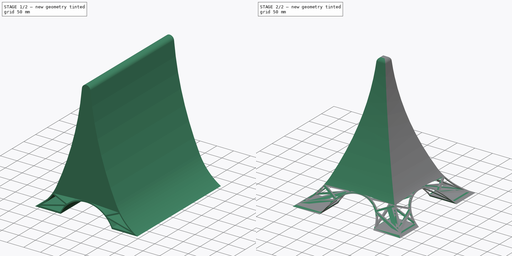
[diagram: build sequence overview — one tinted view per stage of 2, left to right]
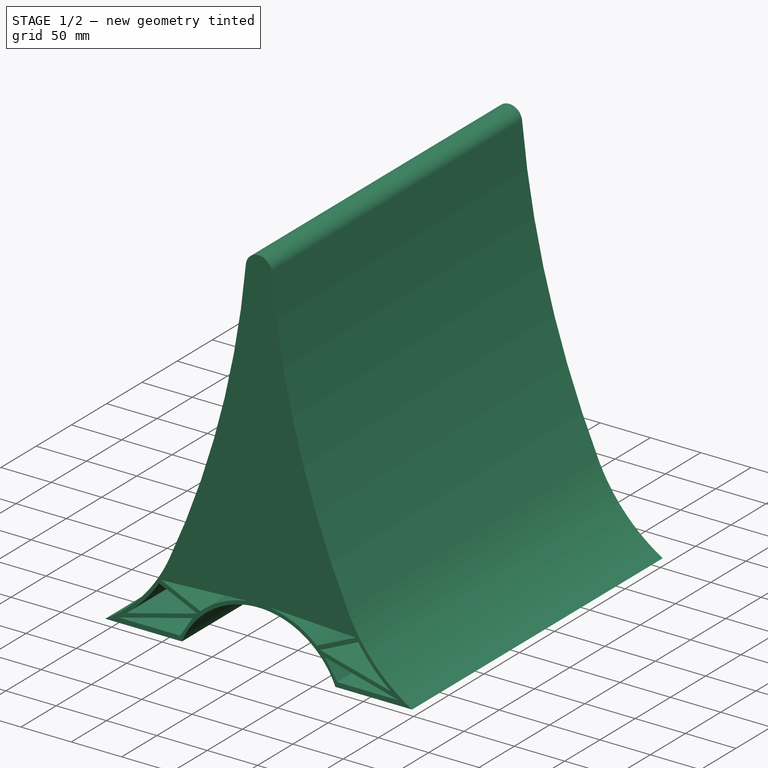
[diagram: stage 1 of 2 — iso view after this stage's code; geometry added in this stage tinted green]
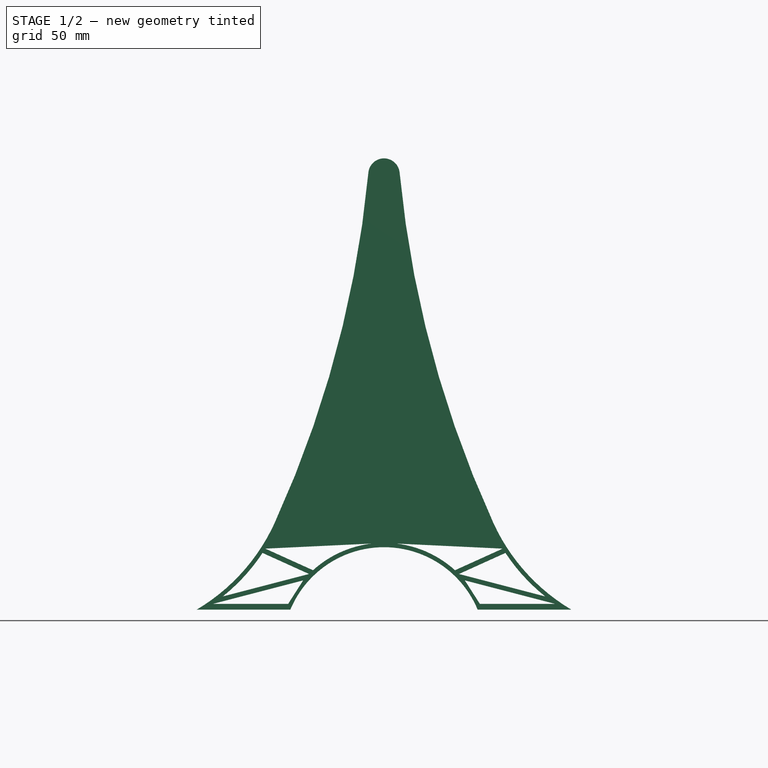
[diagram: stage 1 of 2 — front view after this stage's code; geometry added in this stage tinted green]
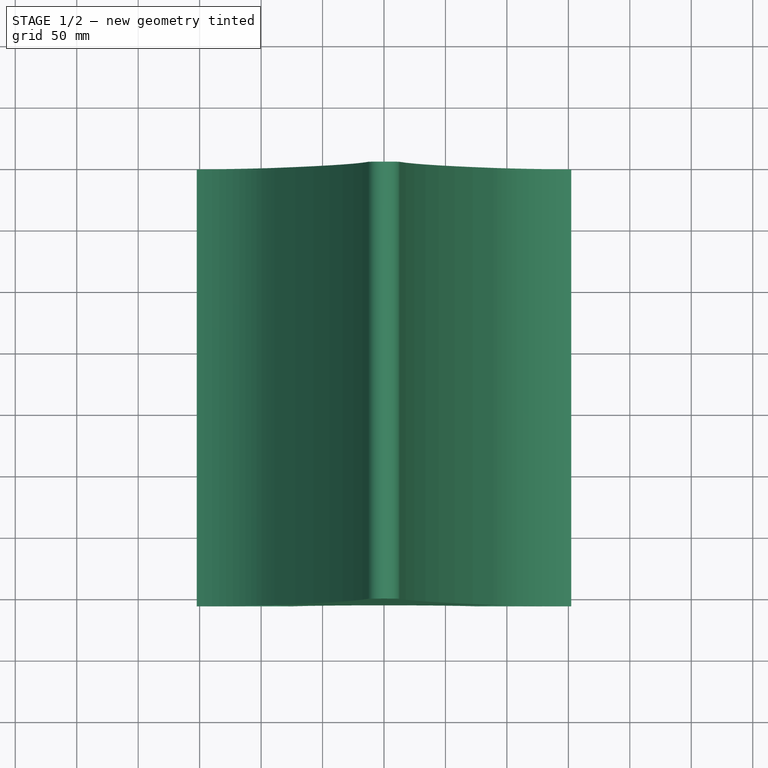
[diagram: stage 1 of 2 — top view after this stage's code; geometry added in this stage tinted green]
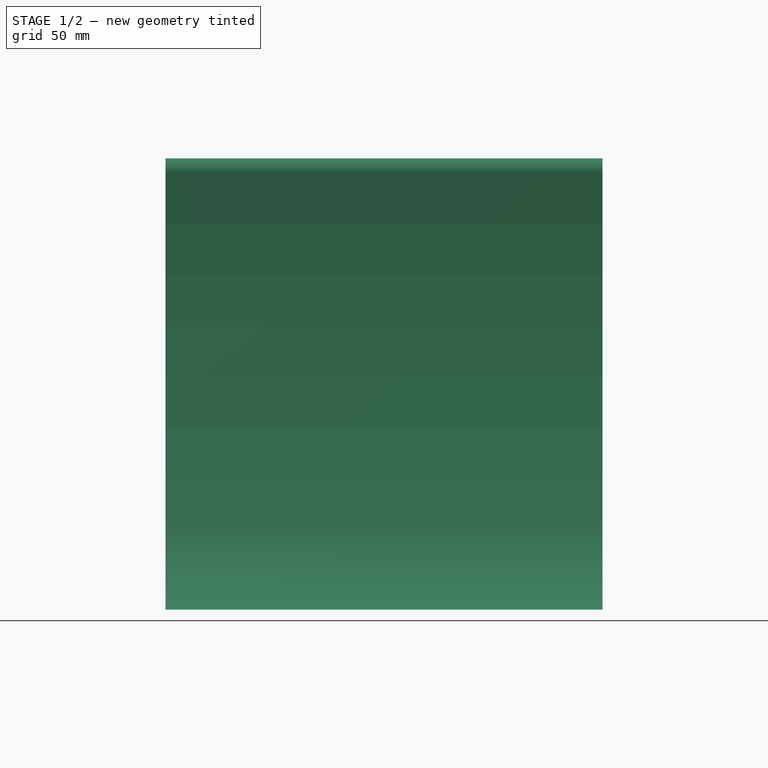
[diagram: stage 1 of 2 — right view after this stage's code; geometry added in this stage tinted green]
FCSTD DOCUMENT  (FreeCAD 0.19R24267 (Git))
Label: tower
License: All rights reserved
LicenseURL: http://en.wikipedia.org/wiki/All_rights_reserved
objects: Sketcher::SketchObject×1, PartDesign::Pad×1, PartDesign::Body×1, App::Part×1, Part::Feature×1, Part::MultiCommon×1
note: 6 computed .brp shape members not serialized (recipe doc carries the construction recipe); baked Part::Feature solids carry a one-line shape summary decoded from their .brp

FEATURE [Sketcher::SketchObject] Sketch
  FullyConstrained = false
  MapMode = 5
  Placement = pos=(0,0,0) rot=(1,0,0;1.5708rad)
  Support = -> [XZ_Plane001]
  sketch-geometry (29):
    g0: ArcOfCircle CenterX=-233.332 CenterY=136.571 CenterZ=0 NormalX=0 NormalY=0 NormalZ=1 AngleXU=0 Radius=158.75 StartAngle=5.24735 EndAngle=5.85521
    g1: ArcOfCircle CenterX=-897.718 CenterY=439.648 CenterZ=0 NormalX=0 NormalY=0 NormalZ=1 AngleXU=0 Radius=889 StartAngle=5.85521 EndAngle=6.1885
    g2: ArcOfCircle CenterX=0 CenterY=354.394 CenterZ=0 NormalX=0 NormalY=0 NormalZ=1 AngleXU=0 Radius=12.7571 StartAngle=0.0946841 EndAngle=3.04691
    g3: ArcOfCircle CenterX=897.718 CenterY=439.648 CenterZ=0 NormalX=0 NormalY=0 NormalZ=1 AngleXU=0 Radius=889 StartAngle=3.23628 EndAngle=3.56957
    g4: ArcOfCircle CenterX=233.332 CenterY=136.571 CenterZ=0 NormalX=0 NormalY=0 NormalZ=1 AngleXU=0 Radius=158.75 StartAngle=3.56957 EndAngle=4.17743
    g5: ArcOfCircle CenterX=0 CenterY=-31.75 CenterZ=0 NormalX=0 NormalY=0 NormalZ=1 AngleXU=0 Radius=82.55 StartAngle=0.394791 EndAngle=2.7468
    g6: LineSegment StartX=76.2 StartY=-3.6e-15 StartZ=0 EndX=152.4 EndY=2.84e-14 EndZ=0
    g7: LineSegment StartX=-76.2 StartY=0 StartZ=0 EndX=-152.4 EndY=-2.84e-14 EndZ=0
    g8: ArcOfCircle CenterX=0 CenterY=-31.75 CenterZ=0 NormalX=0 NormalY=0 NormalZ=1 AngleXU=0 Radius=86.0794 StartAngle=0.377767 EndAngle=2.76383
    g9: ArcOfCircle CenterX=-233.332 CenterY=136.571 CenterZ=0 NormalX=0 NormalY=0 NormalZ=1 AngleXU=0 Radius=162.079 StartAngle=5.28106 EndAngle=5.85521
    g10: ArcOfCircle CenterX=-897.718 CenterY=439.648 CenterZ=0 NormalX=0 NormalY=0 NormalZ=1 AngleXU=0 Radius=892.329 StartAngle=5.85521 EndAngle=6.18886
    g11: LineSegment StartX=-139.101 StartY=4.6985 StartZ=0 EndX=-77.9819 EndY=4.6985 EndZ=0
    g12: LineSegment StartX=-77.9819 StartY=4.6985 StartZ=0 EndX=-65.7674 EndY=23.7866 EndZ=0
    g13: LineSegment StartX=-65.7674 StartY=23.7866 StartZ=0 EndX=-139.101 EndY=4.6985 EndZ=0
    g14: LineSegment StartX=-131.196 StartY=10.7218 StartZ=0 EndX=-60.9883 EndY=28.9961 EndZ=0
    g15: LineSegment StartX=-60.9883 StartY=28.9961 StartZ=0 EndX=-98.8287 EndY=46.1351 EndZ=0
    g16: ArcOfCircle CenterX=-226.102 CenterY=129.963 CenterZ=0 NormalX=0 NormalY=0 NormalZ=1 AngleXU=0 Radius=152.4 StartAngle=5.38464 EndAngle=5.70076
    g17: LineSegment StartX=-96.5486 StartY=49.6222 StartZ=0 EndX=-57.7745 EndY=32.0604 EndZ=0
    g18: ArcOfCircle CenterX=-4.4e-15 CenterY=-31.75 CenterZ=0 NormalX=0 NormalY=0 NormalZ=1 AngleXU=0 Radius=86.0794 StartAngle=1.68723 EndAngle=2.30659
    g19: LineSegment StartX=-96.5486 StartY=49.6222 StartZ=0 EndX=-9.99957 EndY=53.7466 EndZ=0
    g20: LineSegment StartX=139.101 StartY=4.6985 StartZ=0 EndX=77.9819 EndY=4.6985 EndZ=0
    g21: LineSegment StartX=65.7674 StartY=23.7866 StartZ=0 EndX=139.101 EndY=4.6985 EndZ=0
    g22: LineSegment StartX=131.196 StartY=10.7218 StartZ=0 EndX=60.9883 EndY=28.9961 EndZ=0
    g23: ArcOfCircle CenterX=226.102 CenterY=129.963 CenterZ=0 NormalX=0 NormalY=0 NormalZ=1 AngleXU=0 Radius=152.4 StartAngle=3.72402 EndAngle=4.04014
    g24: LineSegment StartX=60.9883 StartY=28.9961 StartZ=0 EndX=98.8287 EndY=46.1351 EndZ=0
    g25: LineSegment StartX=96.5486 StartY=49.6222 StartZ=0 EndX=57.7745 EndY=32.0604 EndZ=0
    g26: LineSegment StartX=96.5486 StartY=49.6222 StartZ=0 EndX=9.99957 EndY=53.7466 EndZ=0
    g27: ArcOfCircle CenterX=4.4e-15 CenterY=-31.75 CenterZ=0 NormalX=0 NormalY=0 NormalZ=1 AngleXU=0 Radius=86.0794 StartAngle=0.835 EndAngle=1.45437
    g28: LineSegment StartX=77.9819 StartY=4.6985 StartZ=0 EndX=65.7674 EndY=23.7866 EndZ=0
  constraints (71):
    c: PointOnObject(g0,g-1)
    c: Radius(g0) = 158.75
    c: DistanceX(g0,g-1) = 152.4
    c: DistanceX(g-1,g0) = -88.9
    c: Tangent(g1,g0) = -1.5708
    c: Radius(g1) = 889
    c: DistanceY(g-1,g1) = 355.6
    c: PointOnObject(g2,g-2)
    c: DistanceX(g1,g-1) = 12.7
    c: Tangent(g2,g1) = 1.5708
    c: Horizontal(g1,g2)
    c: Radius(g4) = 158.75
    c: Tangent(g3,g4) = -1.5708
    c: Radius(g3) = 889
    c: Symmetric(g0,g4,g-1)
    c: Tangent(g2,g3) = 1.5708
    c: PointOnObject(g5,g-2)
    c: PointOnObject(g5,g-1)
    c: PointOnObject(g5,g-1)
    c: Radius(g5) = 82.55
    c: DistanceX(g5,g5) = 152.4
    c: Coincident(g6,g5)
    c: Coincident(g6,g4)
    c: Coincident(g7,g5)
    c: Coincident(g7,g0)
    c: PointOnObject(g8,g7)
    c: PointOnObject(g8,g6)
    c: DistanceX(g8,g5) = 3.81
    c: Coincident(g5,g8)
    c: Coincident(g9,g0)
    c: PointOnObject(g9,g7)
    c: DistanceX(g0,g9) = 6.35
    c: Coincident(g10,g1)
    c: Tangent(g10,g9) = -1.5708
    c: Horizontal(g1,g10)
    c: PointOnObject(g11,g9)
    c: PointOnObject(g11,g8)
    c: Horizontal(g11)
    c: Coincident(g11,g12)
    c: PointOnObject(g12,g8)
    c: Coincident(g12,g13)
    c: Coincident(g13,g11)
    c: PointOnObject(g14,g9)
    c: PointOnObject(g14,g8)
    c: Coincident(g14,g15)
    c: PointOnObject(g15,g9)
    c: Coincident(g16,g14)
    c: Coincident(g16,g15)
    c: Radius(g16) = 152.4
    c: PointOnObject(g17,g9)
    c: PointOnObject(g17,g8)
    c: Parallel(g14,g13)
    c: Parallel(g17,g15)
    c: Coincident(g18,g17)
    c: PointOnObject(g18,g8)
    c: Equal(g18,g8)
    c: Coincident(g19,g17)
    c: Coincident(g19,g18)
    c: Horizontal(g20)
    c: Coincident(g20,g28)
    c: Coincident(g28,g21)
    c: Coincident(g21,g20)
    c: Coincident(g22,g24)
    c: Coincident(g23,g22)
    c: Coincident(g23,g24)
    c: Radius(g23) = 152.4
    c: Parallel(g22,g21)
    c: Parallel(g25,g24)
    c: Coincident(g27,g25)
    c: Coincident(g26,g25)
    c: Coincident(g26,g27)
FEATURE [PartDesign::Pad] Pad
  Direction = (1,1,1)
  Length = 355.6
  Length2 = 100.076
  Placement = pos=(0,0,0) rot=(1,0,0;1.5708rad)
  Profile = -> Sketch
  Type = 0
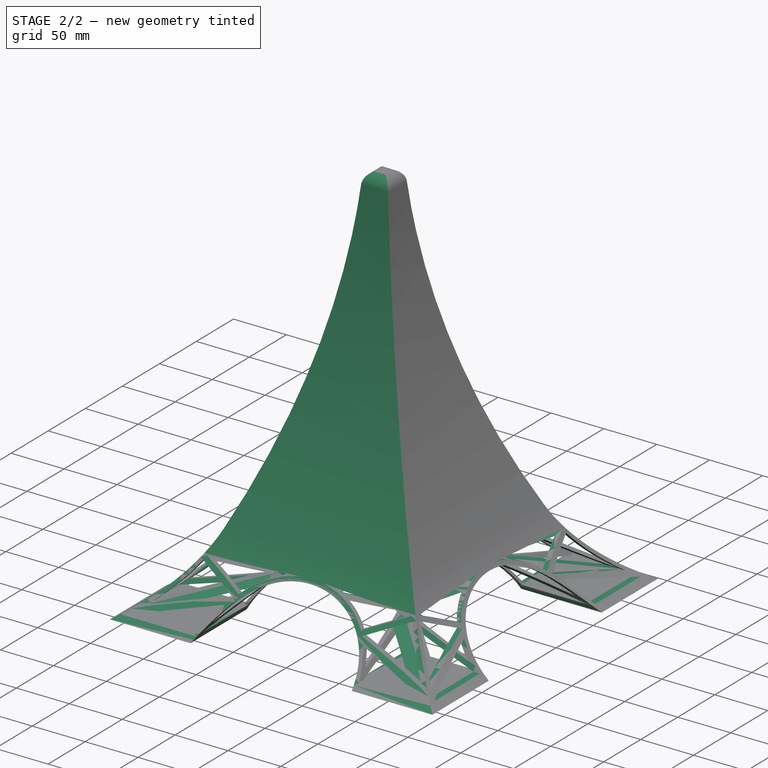
[diagram: stage 2 of 2 — iso view after this stage's code; geometry added in this stage tinted green]
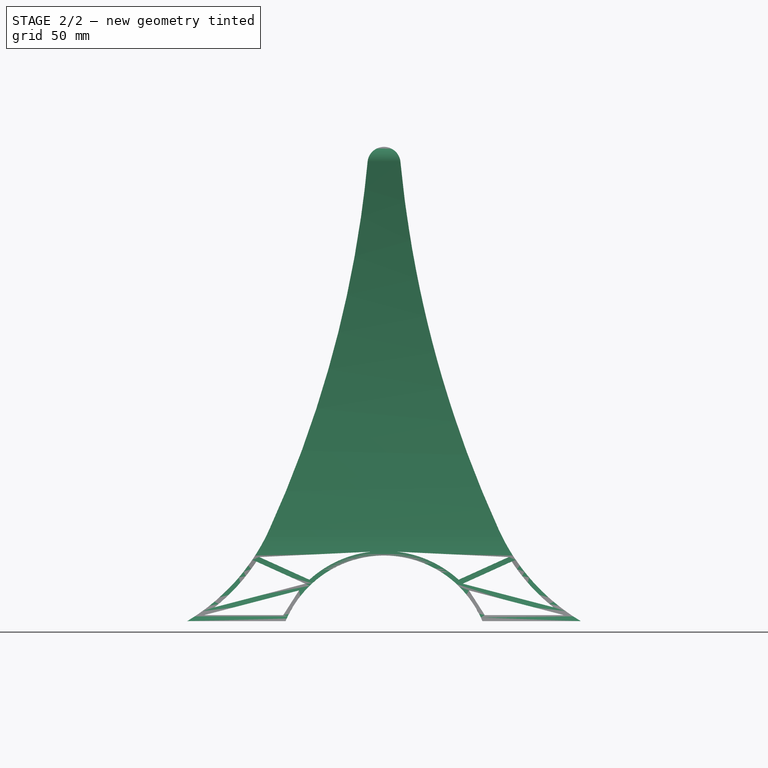
[diagram: stage 2 of 2 — front view after this stage's code; geometry added in this stage tinted green]
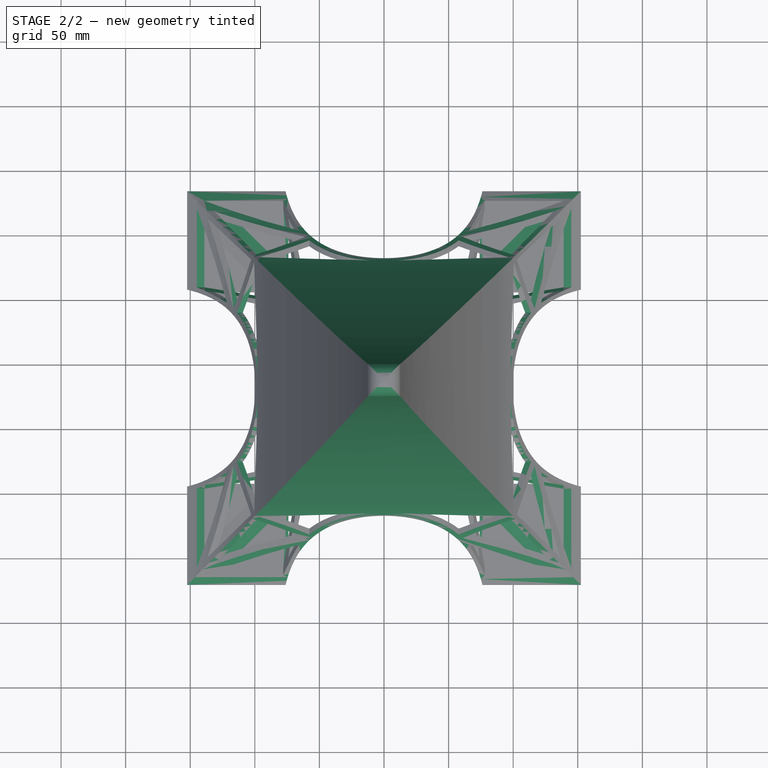
[diagram: stage 2 of 2 — top view after this stage's code; geometry added in this stage tinted green]
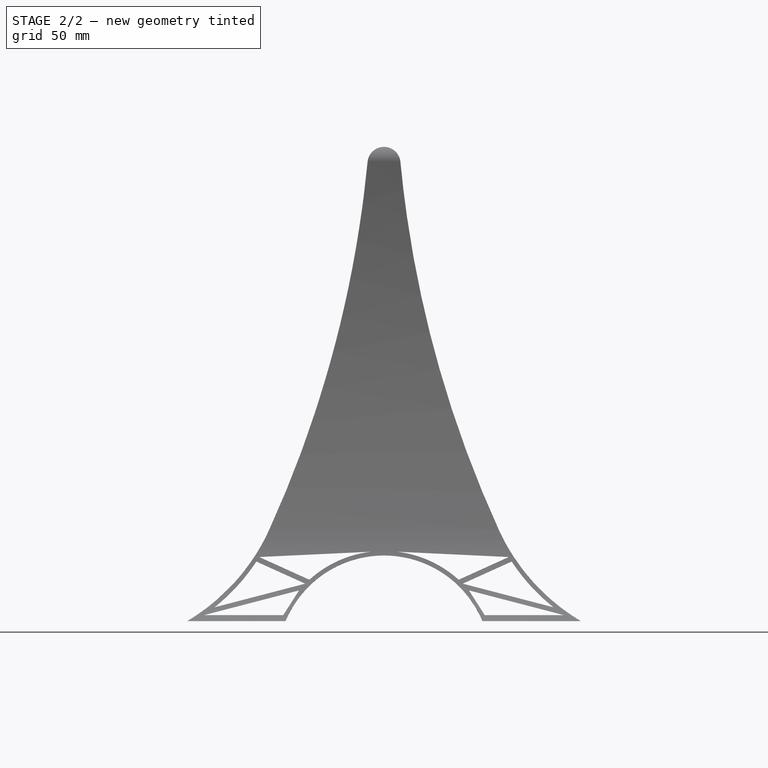
[diagram: stage 2 of 2 — right view after this stage's code; geometry added in this stage tinted green]
FEATURE [PartDesign::Body] Body
  Group = -> [Sketch,Pad]
  Origin = -> Origin001
  Tip = -> Pad
FEATURE [App::Part] Part
  Group = -> [Body]
  Origin = -> Origin
FEATURE [Part::Feature] Pad001
  Placement = pos=(169,-168,0.000254) rot=(-0.57735,0.57735,0.57735;4.18879rad)
  shape: bbox 355.6 x 304.8 x 367.2 mm, 28 faces (baked)
FEATURE [Part::MultiCommon] Common
  Shapes = -> [Pad,Pad001]
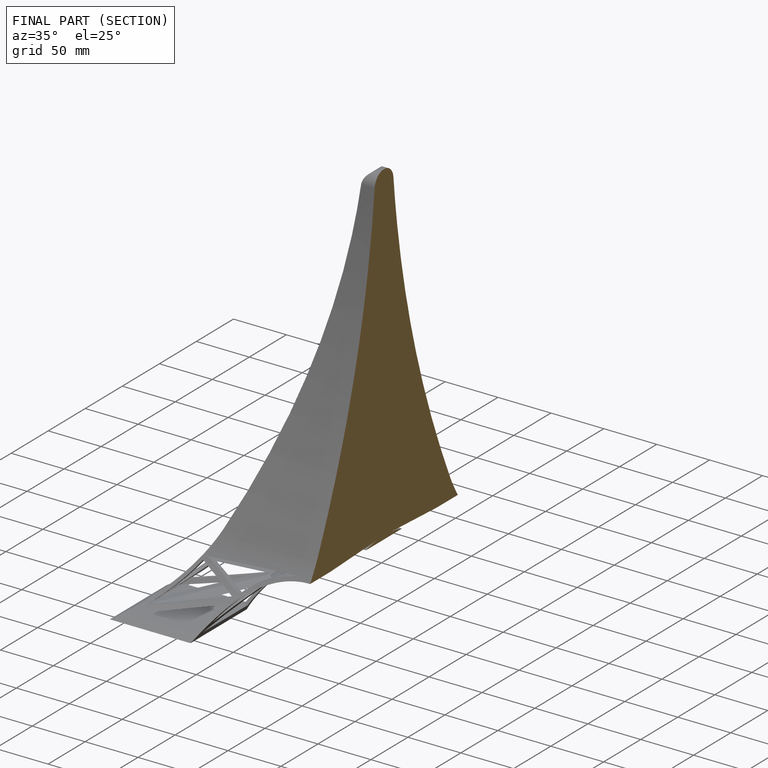
[diagram: finished part — half-section view (interior)]
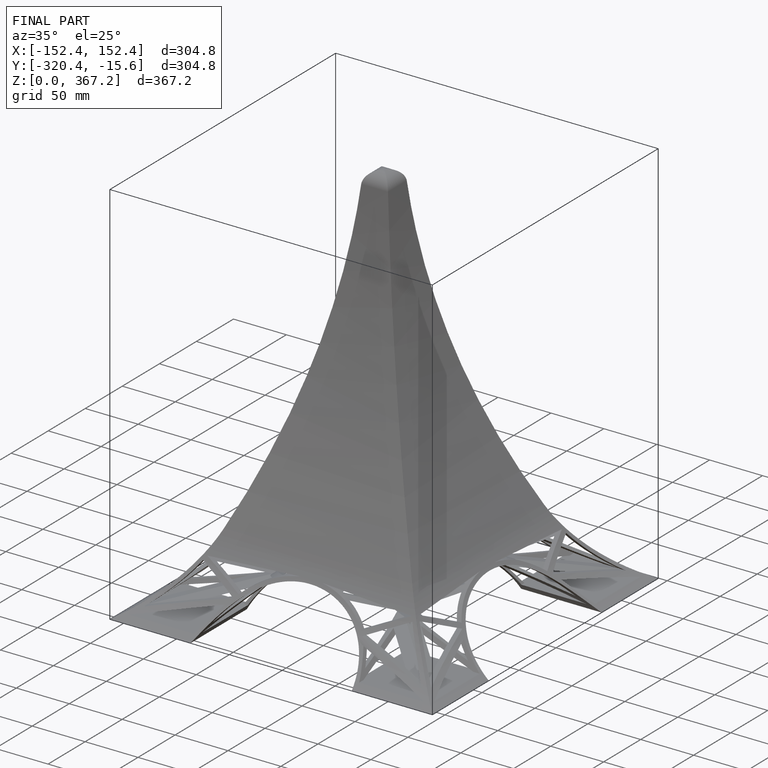
[diagram: finished part — iso view with bounding-box wireframe]
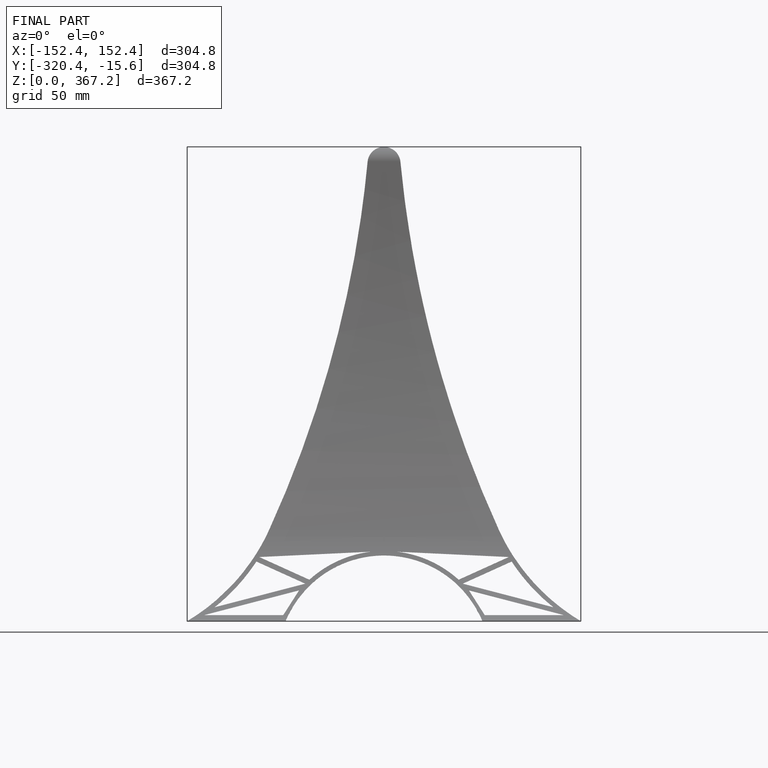
[diagram: finished part — front view with bounding-box wireframe]
